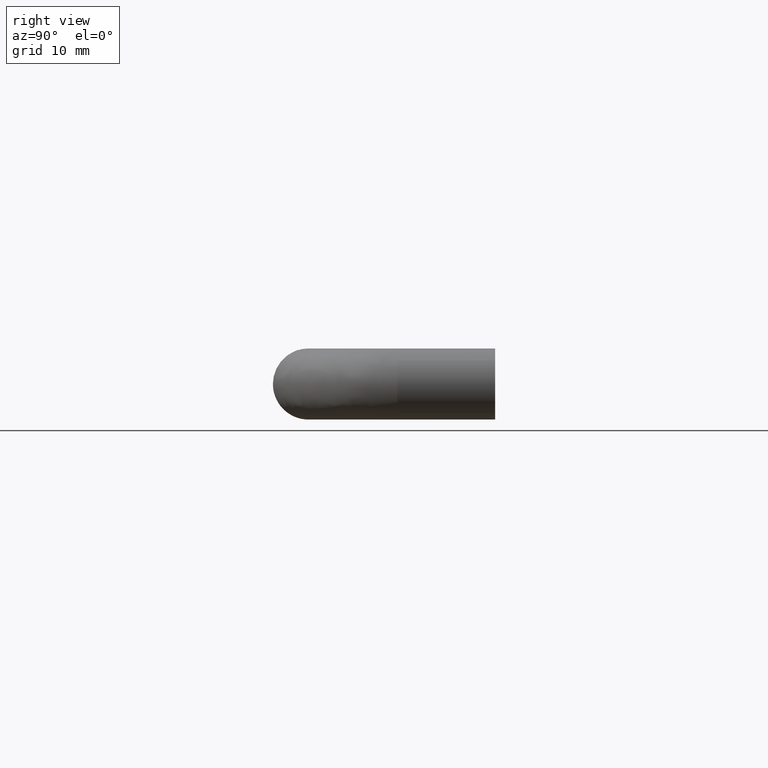
[diagram: clean part render]
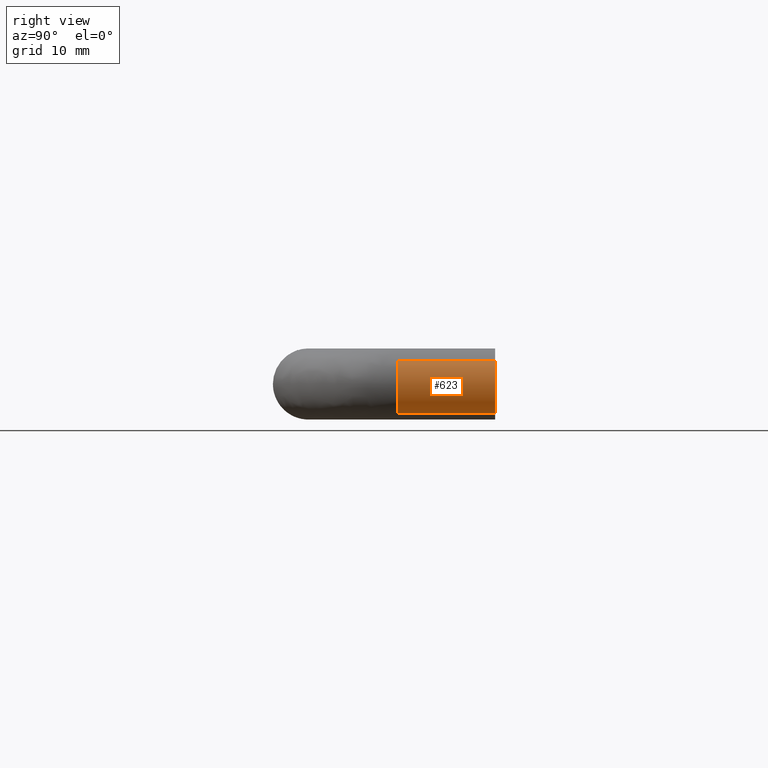
[diagram: same view with one face highlighted and labeled with its STEP entity id]
A machine part, right view. The second image highlights one B-rep face of the part: STEP entity #623.
In plain terms, the highlighted face is a freeform B-spline surface patch.
Its self-contained STEP definition (entity closure, byte-faithful):
#432=CARTESIAN_POINT('',(72.286842443538333,-11.0,-3.281821390391567));
#433=VERTEX_POINT('',#432);
#481=CARTESIAN_POINT('',(72.995823056830687,-11.000000000159060,2.650479996171793));
#482=VERTEX_POINT('',#481);
#496=CARTESIAN_POINT('',(72.995823139684163,8.222589E-015,2.650479902910564));
#497=VERTEX_POINT('',#496);
#498=CARTESIAN_POINT('',(72.995823056830687,-11.000000000159060,2.650479996171793));
#499=CARTESIAN_POINT('',(72.995823139684163,8.222589E-015,2.650479902910564));
#500=QUASI_UNIFORM_CURVE('',1,(#498,#499),.UNSPECIFIED.,.F.,.U.);
#501=EDGE_CURVE('',#482,#497,#500,.T.);
#520=CARTESIAN_POINT('',(72.286841901883619,8.107607E-015,-3.281821767827867));
#521=VERTEX_POINT('',#520);
#537=CARTESIAN_POINT('',(72.286842443538333,-11.0,-3.281821390391567));
#538=CARTESIAN_POINT('',(72.286841901883619,8.107607E-015,-3.281821767827867));
#539=QUASI_UNIFORM_CURVE('',1,(#537,#538),.UNSPECIFIED.,.F.,.U.);
#540=EDGE_CURVE('',#433,#521,#539,.T.);
#545=CARTESIAN_POINT('',(72.995822883156009,-11.275000000633121,2.650480192862948));
#546=CARTESIAN_POINT('',(75.646303076018953,-11.275000000633122,-0.345342690293061));
#547=CARTESIAN_POINT('',(72.650480192862943,-11.275000000633121,-2.995822883156009));
#548=CARTESIAN_POINT('',(72.476944668525732,-11.275000000633119,-3.149354145835096));
#549=CARTESIAN_POINT('',(72.286842443536059,-11.275000000633128,-3.281821390393139));
#550=CARTESIAN_POINT('',(72.995822883156009,0.281875000015838,2.650480192862948));
#551=CARTESIAN_POINT('',(75.646303076018953,0.281875000015838,-0.345342690293061));
#552=CARTESIAN_POINT('',(72.650480192862943,0.281875000015837,-2.995822883156009));
#553=CARTESIAN_POINT('',(72.476944668525732,0.281875000015837,-3.149354145835096));
#554=CARTESIAN_POINT('',(72.286842443536059,0.281875000015837,-3.281821390393139));
#562=(BOUNDED_SURFACE()B_SPLINE_SURFACE(2,1,((#545,#550),(#546,#551),(#547,#552),(#548,#553),(#549,#554)),.UNSPECIFIED.,.F.,.F.,.U.)B_SPLINE_SURFACE_WITH_KNOTS((3,2,3),(2,2),(0.0,6.627416997969518,7.157610357807080),(0.0,11.556875000648960),.UNSPECIFIED.)GEOMETRIC_REPRESENTATION_ITEM()RATIONAL_B_SPLINE_SURFACE(((1.0,1.0),(0.707106781186548,0.707106781186548),(1.0,1.0),(0.976568542494924,0.976568542494924),(0.956886118190660,0.956886118190660)))REPRESENTATION_ITEM('')SURFACE());
#563=CARTESIAN_POINT('',(74.000000000000014,-11.0,0.0));
#564=VERTEX_POINT('',#563);
#565=CARTESIAN_POINT('',(72.286842443538333,-11.000000000000002,-3.281821390391567));
#566=CARTESIAN_POINT('',(74.000000000000028,-11.0,-2.088057030130858));
#567=CARTESIAN_POINT('',(74.000000000000014,-11.0,0.0));
#575=(BOUNDED_CURVE()B_SPLINE_CURVE(2,(#565,#566,#567),.UNSPECIFIED.,.F.,.U.)B_SPLINE_CURVE_WITH_KNOTS((3,3),(0.348251884123429,0.500000000000000),.UNSPECIFIED.)CURVE()GEOMETRIC_REPRESENTATION_ITEM()RATIONAL_B_SPLINE_CURVE((0.860259114788914,0.822216023568137,1.0))REPRESENTATION_ITEM(''));
#576=EDGE_CURVE('',#433,#564,#575,.T.);
#577=ORIENTED_EDGE('',*,*,#576,.F.);
#578=ORIENTED_EDGE('',*,*,#540,.T.);
#579=CARTESIAN_POINT('',(74.000000000000014,8.673617E-015,0.0));
#580=VERTEX_POINT('',#579);
#581=CARTESIAN_POINT('',(72.286841901883619,8.107607E-015,-3.281821767827867));
#582=CARTESIAN_POINT('',(74.000000000000014,8.673617E-015,-2.088057870219212));
#583=CARTESIAN_POINT('',(74.000000000000014,8.673617E-015,0.0));
#591=(BOUNDED_CURVE()B_SPLINE_CURVE(2,(#581,#582,#583),.UNSPECIFIED.,.F.,.U.)B_SPLINE_CURVE_WITH_KNOTS((3,3),(0.348251833924804,0.500000000000000),.UNSPECIFIED.)CURVE()GEOMETRIC_REPRESENTATION_ITEM()RATIONAL_B_SPLINE_CURVE((0.860259139958421,0.822215964756790,1.0))REPRESENTATION_ITEM(''));
#592=EDGE_CURVE('',#521,#580,#591,.T.);
#593=ORIENTED_EDGE('',*,*,#592,.T.);
#594=CARTESIAN_POINT('',(74.000000000000014,8.673617E-015,0.0));
#595=CARTESIAN_POINT('',(74.0,8.673617E-015,1.515463992068887));
#596=CARTESIAN_POINT('',(72.995823139684163,8.222589E-015,2.650479902910564));
#604=(BOUNDED_CURVE()B_SPLINE_CURVE(2,(#594,#595,#596),.UNSPECIFIED.,.F.,.U.)B_SPLINE_CURVE_WITH_KNOTS((3,3),(0.500000000000000,0.615779858824685),.UNSPECIFIED.)CURVE()GEOMETRIC_REPRESENTATION_ITEM()RATIONAL_B_SPLINE_CURVE((1.0,0.864355457900284,0.854350163277721))REPRESENTATION_ITEM(''));
#605=EDGE_CURVE('',#580,#497,#604,.T.);
#606=ORIENTED_EDGE('',*,*,#605,.T.);
#607=ORIENTED_EDGE('',*,*,#501,.F.);
#608=CARTESIAN_POINT('',(74.000000000000014,-11.0,0.0));
#609=CARTESIAN_POINT('',(74.0,-11.0,1.515464134450860));
#610=CARTESIAN_POINT('',(72.995823056830702,-11.000000000159060,2.650479996171793));
#618=(BOUNDED_CURVE()B_SPLINE_CURVE(2,(#608,#609,#610),.UNSPECIFIED.,.F.,.U.)B_SPLINE_CURVE_WITH_KNOTS((3,3),(0.500000000000000,0.615779868226999),.UNSPECIFIED.)CURVE()GEOMETRIC_REPRESENTATION_ITEM()RATIONAL_B_SPLINE_CURVE((1.0,0.864355446884787,0.854350161652691))REPRESENTATION_ITEM(''));
#619=EDGE_CURVE('',#564,#482,#618,.T.);
#620=ORIENTED_EDGE('',*,*,#619,.F.);
#621=EDGE_LOOP('',(#577,#578,#593,#606,#607,#620));
#622=FACE_OUTER_BOUND('',#621,.T.);
#623=ADVANCED_FACE('',(#622),#562,.T.);